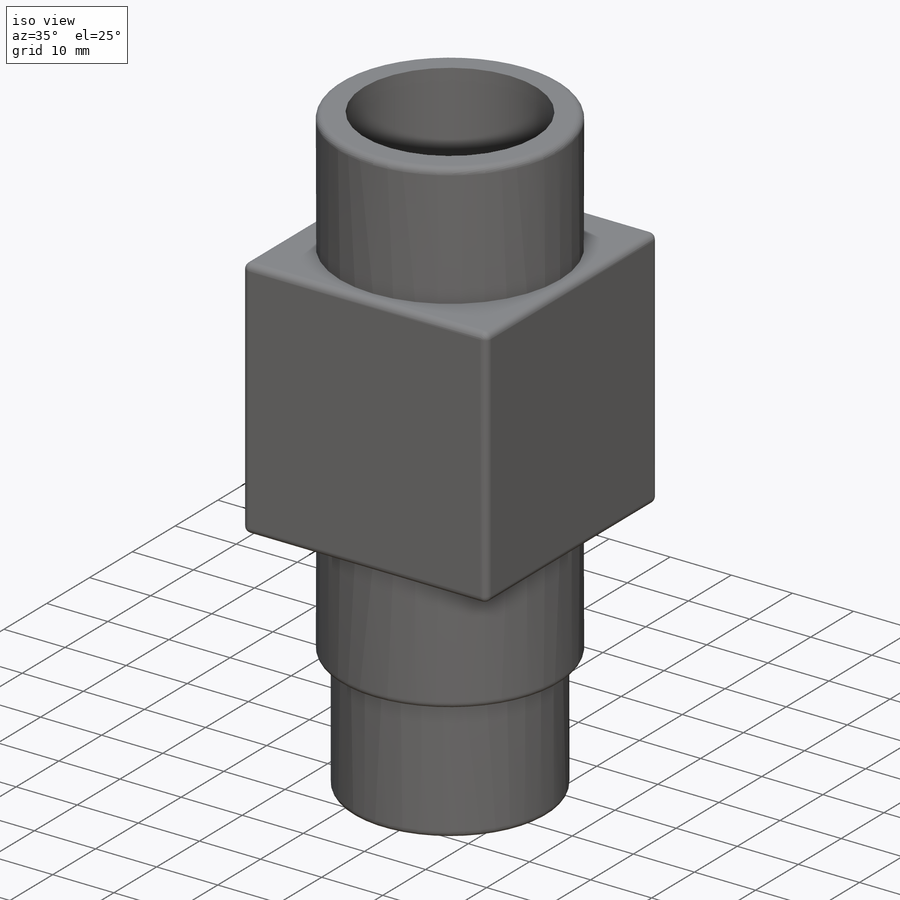
[diagram: iso view]
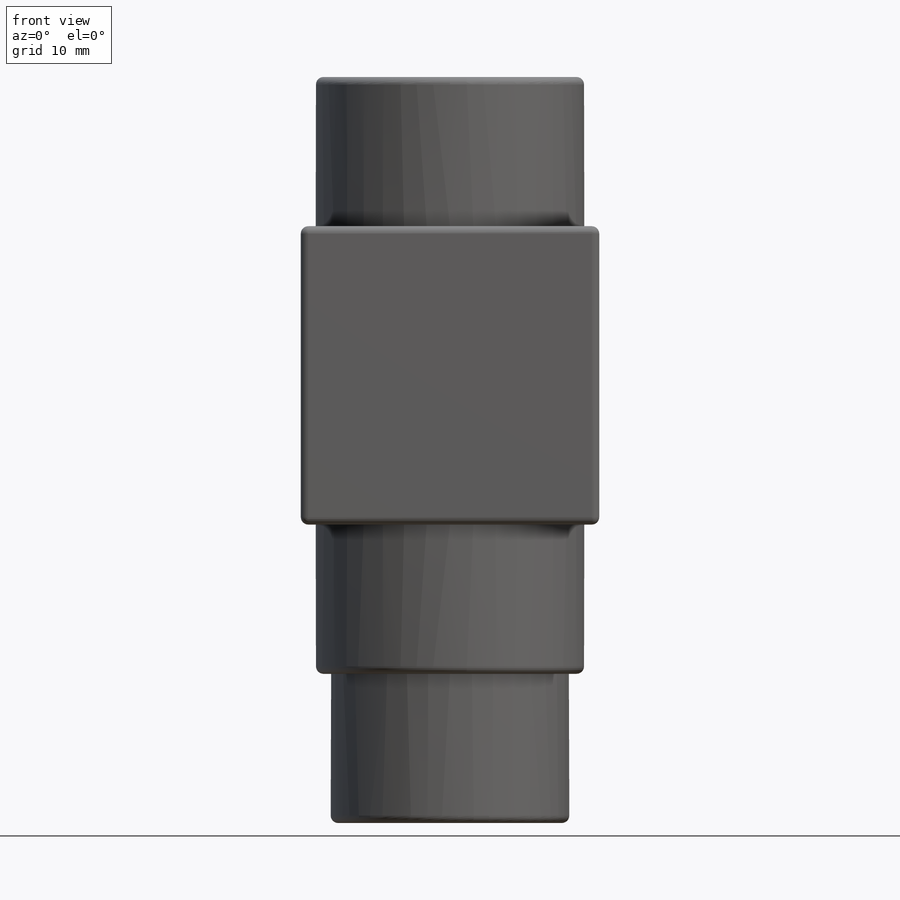
[diagram: front view]
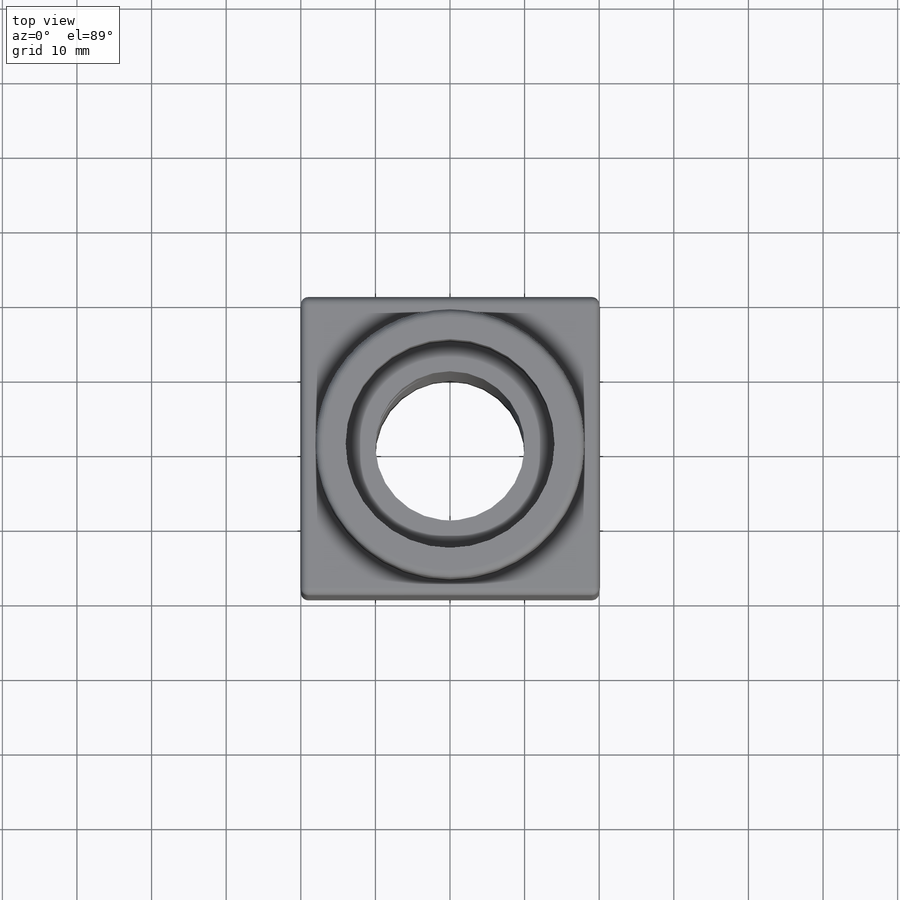
[diagram: top view]
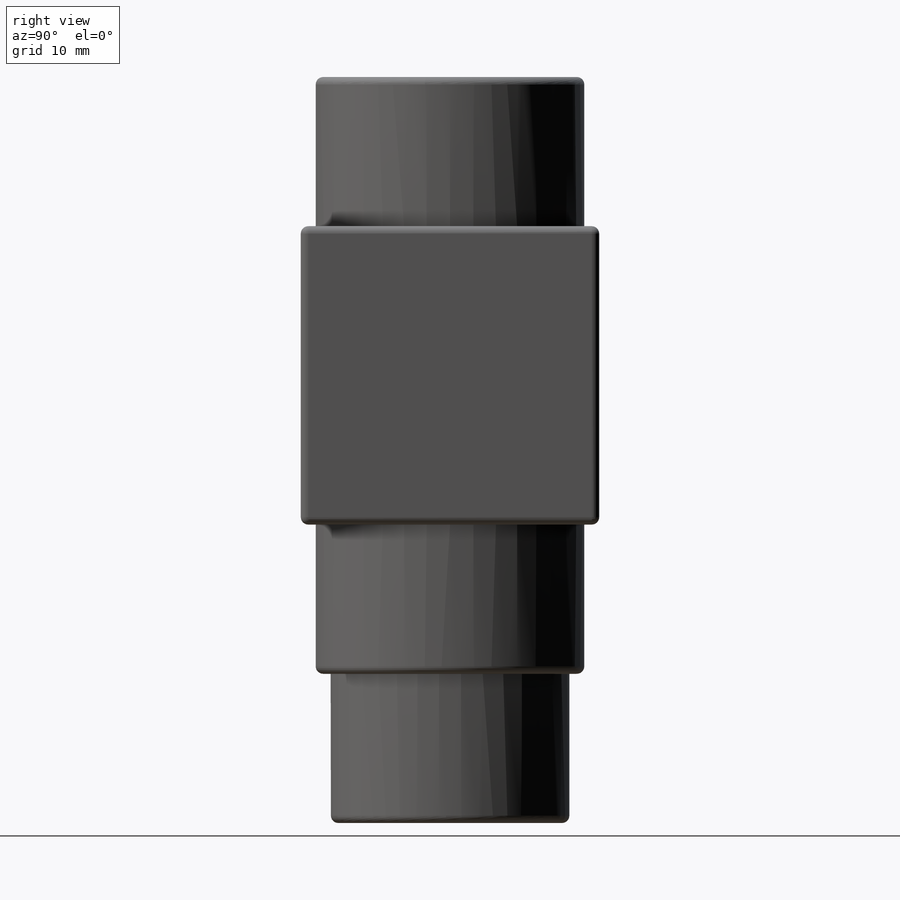
[diagram: right view]
SOLIDWORKS PART (.sldprt)
format: sldprt  version: not decoded by parser v0  size: 264,192 bytes
history: native  units: mm
features: sketch x6, plane x3, extrude x3, fillet x3, cut_extrude x3, material x1 (+10 scaffold rows collapsed)
feature tree (29):
  scaffold x10  (default folders/planes/origin — collapsed)
  material  "Material <sin especificar>"
  plane  "Alzado"
  plane  "Planta"
  plane  "Vista lateral"
  sketch  "Croquis1"  dims[D1=40.0mm D2=40.0mm]
  extrude  "Saliente-Extruir2"  Depth=40mm
  sketch  "Croquis4"  dims[D1=36.0mm]
  extrude  "Saliente-Extruir3"  Depth=80mm
  fillet  "Redondeo1"  Radius=1mm
  sketch  "Croquis5"  dims[D1=32.0mm]
  extrude  "Saliente-Extruir4"  Depth=20mm
  fillet  "Redondeo2"  Radius=1mm
  sketch  "Croquis6"  dims[D1=28.0mm]
  cut_extrude  "Cortar-Extruir1"  Depth=18mm
  sketch  "Croquis7"  dims[D1=~26.218405mm 25=20.0mm]
  cut_extrude  "Cortar-Extruir3"  [1 undecoded]
  sketch  "Croquis8"  dims[D1=19.0mm]
  cut_extrude  "Cortar-Extruir4"  Depth=18mm
  fillet  "Redondeo3"  Radius=1mm
decode coverage: 14 of 15 modeling features carry decoded parameters
note: ~ marks probable driven/reference dimensions
note: 1 parameter value undecoded
note: suppression state not decoded; provenance and decode notes live in map.json
